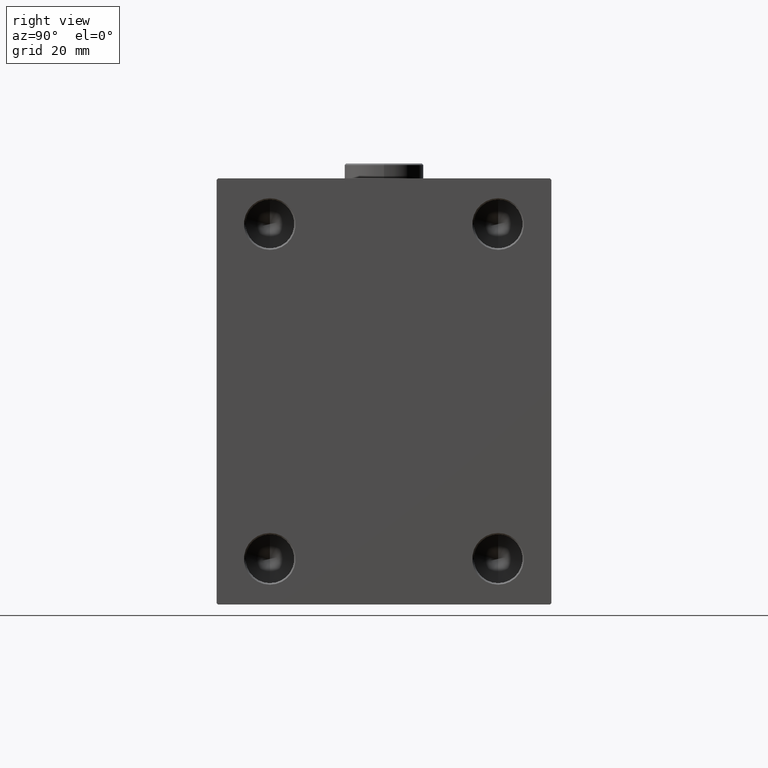
[diagram: clean part render]
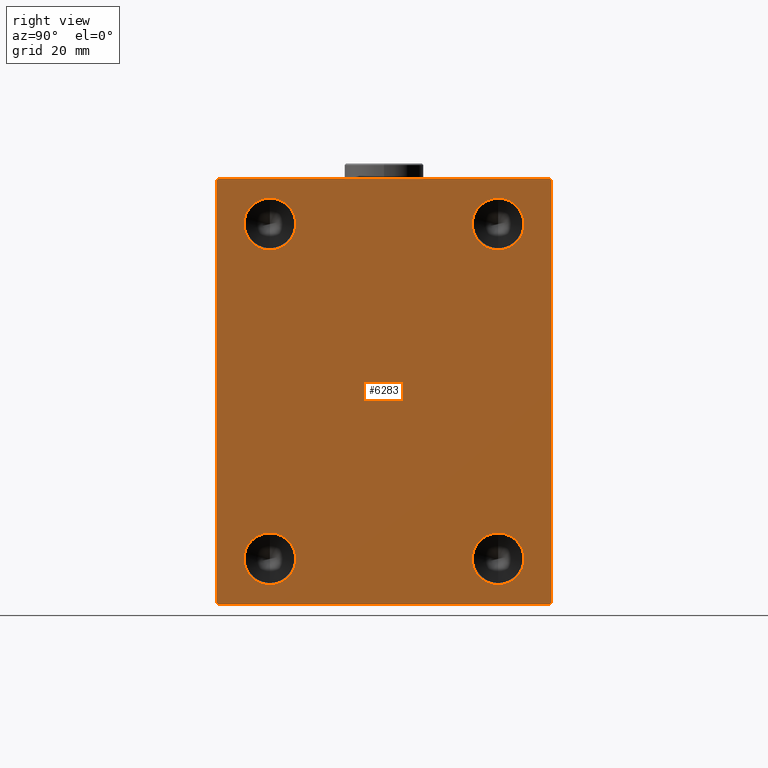
[diagram: same view with one face highlighted and labeled with its STEP entity id]
A machine part, right view. The second image highlights one B-rep face of the part: STEP entity #6283.
In plain terms, the highlighted planar face has unit normal (1, 0, 0).
Its self-contained STEP definition (entity closure, byte-faithful):
#116 = EDGE_CURVE ( 'NONE', #36750, #21173, #35311, .T. ) ;
#149 = DIRECTION ( 'NONE',  ( 0.000000000000000000, -1.000000000000000000, -1.261617073437677999E-16 ) ) ;
#268 = VERTEX_POINT ( 'NONE', #36465 ) ;
#390 = CARTESIAN_POINT ( 'NONE',  ( 143.0000000000000000, 54.99999999999999289, 70.00000000000001421 ) ) ;
#1232 = VERTEX_POINT ( 'NONE', #20285 ) ;
#1524 = EDGE_CURVE ( 'NONE', #17525, #32131, #30371, .T. ) ;
#1645 = ORIENTED_EDGE ( 'NONE', *, *, #116, .T. ) ;
#2725 = CARTESIAN_POINT ( 'NONE',  ( 143.0000000000000000, -54.50000000000000000, -70.00000000000000000 ) ) ;
#3225 = DIRECTION ( 'NONE',  ( -0.000000000000000000, 0.7071067811865671127, -0.7071067811865279218 ) ) ;
#3595 = FACE_BOUND ( 'NONE', #18218, .T. ) ;
#3658 = VERTEX_POINT ( 'NONE', #44358 ) ;
#3803 = CARTESIAN_POINT ( 'NONE',  ( 143.0000000000000000, -37.49999999999999289, 55.00000000000000711 ) ) ;
#4726 = DIRECTION ( 'NONE',  ( 1.000000000000000000, -0.000000000000000000, -0.000000000000000000 ) ) ;
#4777 = EDGE_CURVE ( 'NONE', #44941, #268, #14602, .T. ) ;
#4869 = VERTEX_POINT ( 'NONE', #44630 ) ;
#5293 = VERTEX_POINT ( 'NONE', #7805 ) ;
#5442 = VECTOR ( 'NONE', #8842, 1000.000000000000000 ) ;
#6191 = ORIENTED_EDGE ( 'NONE', *, *, #32088, .F. ) ;
#6283 = ADVANCED_FACE ( 'NONE', ( #41273, #24171, #3595, #9870, #20258 ), #17233, .T. ) ;
#6476 = EDGE_CURVE ( 'NONE', #3658, #35433, #38409, .T. ) ;
#6695 = EDGE_CURVE ( 'NONE', #35433, #1232, #12090, .T. ) ;
#6751 = DIRECTION ( 'NONE',  ( 1.000000000000000000, -0.000000000000000000, -0.000000000000000000 ) ) ;
#6886 = CARTESIAN_POINT ( 'NONE',  ( 143.0000000000000000, 37.50000000000000000, -54.99999999999999289 ) ) ;
#7600 = CARTESIAN_POINT ( 'NONE',  ( 143.0000000000000000, -55.00000000000000000, -70.00000000000000000 ) ) ;
#7805 = CARTESIAN_POINT ( 'NONE',  ( 143.0000000000000000, 37.50000000000000000, -46.49999999999997158 ) ) ;
#8194 = EDGE_CURVE ( 'NONE', #32131, #17525, #44920, .T. ) ;
#8311 = CIRCLE ( 'NONE', #43722, 8.500000000000007105 ) ;
#8842 = DIRECTION ( 'NONE',  ( 0.000000000000000000, -0.7071067811865328068, -0.7071067811865622277 ) ) ;
#9870 = FACE_BOUND ( 'NONE', #25074, .T. ) ;
#10042 = CARTESIAN_POINT ( 'NONE',  ( 143.0000000000000000, 55.00000000000000711, -69.99999999999998579 ) ) ;
#10045 = CARTESIAN_POINT ( 'NONE',  ( 143.0000000000000000, 37.50000000000000000, 63.50000000000000000 ) ) ;
#11202 = CARTESIAN_POINT ( 'NONE',  ( 143.0000000000000000, -37.49999999999999289, 55.00000000000000711 ) ) ;
#12027 = ORIENTED_EDGE ( 'NONE', *, *, #6476, .T. ) ;
#12090 = LINE ( 'NONE', #29872, #21261 ) ;
#12583 = CARTESIAN_POINT ( 'NONE',  ( 143.0000000000000000, -37.49999999999999289, -63.49999999999998579 ) ) ;
#13634 = EDGE_CURVE ( 'NONE', #16220, #5293, #37642, .T. ) ;
#13839 = LINE ( 'NONE', #44827, #30581 ) ;
#13900 = VECTOR ( 'NONE', #39547, 1000.000000000000000 ) ;
#14602 = LINE ( 'NONE', #29388, #13900 ) ;
#15207 = DIRECTION ( 'NONE',  ( 1.000000000000000000, -0.000000000000000000, -0.000000000000000000 ) ) ;
#15557 = DIRECTION ( 'NONE',  ( -0.000000000000000000, 0.7071067811865230368, 0.7071067811865721087 ) ) ;
#16220 = VERTEX_POINT ( 'NONE', #23521 ) ;
#16331 = EDGE_CURVE ( 'NONE', #26751, #27912, #36220, .T. ) ;
#16358 = AXIS2_PLACEMENT_3D ( 'NONE', #3803, #31986, #20908 ) ;
#16569 = CIRCLE ( 'NONE', #22475, 8.500000000000007105 ) ;
#16913 = ORIENTED_EDGE ( 'NONE', *, *, #6695, .T. ) ;
#17112 = CARTESIAN_POINT ( 'NONE',  ( 143.0000000000000000, 54.50000000000004263, -69.99999999999998579 ) ) ;
#17233 = PLANE ( 'NONE',  #31638 ) ;
#17366 = CARTESIAN_POINT ( 'NONE',  ( 143.0000000000000000, 37.50000000000000000, -54.99999999999999289 ) ) ;
#17525 = VERTEX_POINT ( 'NONE', #28425 ) ;
#17683 = DIRECTION ( 'NONE',  ( 1.000000000000000000, 0.000000000000000000, 0.000000000000000000 ) ) ;
#17884 = CIRCLE ( 'NONE', #37084, 8.500000000000007105 ) ;
#17934 = LINE ( 'NONE', #390, #31239 ) ;
#18201 = CARTESIAN_POINT ( 'NONE',  ( 143.0000000000000000, -37.49999999999999289, -54.99999999999999289 ) ) ;
#18218 = EDGE_LOOP ( 'NONE', ( #22611, #29562 ) ) ;
#18339 = LINE ( 'NONE', #29422, #20170 ) ;
#19038 = ORIENTED_EDGE ( 'NONE', *, *, #1524, .F. ) ;
#19206 = DIRECTION ( 'NONE',  ( 1.000000000000000000, -0.000000000000000000, -0.000000000000000000 ) ) ;
#19310 = VERTEX_POINT ( 'NONE', #25193 ) ;
#19994 = VECTOR ( 'NONE', #28152, 1000.000000000000000 ) ;
#20170 = VECTOR ( 'NONE', #15557, 999.9999999999998863 ) ;
#20258 = FACE_OUTER_BOUND ( 'NONE', #23198, .T. ) ;
#20285 = CARTESIAN_POINT ( 'NONE',  ( 143.0000000000000000, 54.49999999999999289, 70.00000000000001421 ) ) ;
#20456 = EDGE_CURVE ( 'NONE', #27912, #26751, #8311, .T. ) ;
#20647 = DIRECTION ( 'NONE',  ( 0.000000000000000000, -9.912705577010325549E-17, 1.000000000000000000 ) ) ;
#20908 = DIRECTION ( 'NONE',  ( 0.000000000000000000, 0.000000000000000000, -1.000000000000000000 ) ) ;
#21173 = VERTEX_POINT ( 'NONE', #17112 ) ;
#21261 = VECTOR ( 'NONE', #44412, 1000.000000000000000 ) ;
#21416 = DIRECTION ( 'NONE',  ( 0.000000000000000000, 0.000000000000000000, -1.000000000000000000 ) ) ;
#21608 = DIRECTION ( 'NONE',  ( 1.000000000000000000, -0.000000000000000000, -0.000000000000000000 ) ) ;
#21818 = VERTEX_POINT ( 'NONE', #10045 ) ;
#21846 = CIRCLE ( 'NONE', #32161, 8.500000000000035527 ) ;
#21877 = EDGE_LOOP ( 'NONE', ( #40613, #25611 ) ) ;
#22138 = CARTESIAN_POINT ( 'NONE',  ( 143.0000000000000000, 37.50000000000000000, 55.00000000000000711 ) ) ;
#22218 = CARTESIAN_POINT ( 'NONE',  ( 143.0000000000000000, -62.25000000000114397, 62.24999999999855049 ) ) ;
#22475 = AXIS2_PLACEMENT_3D ( 'NONE', #22138, #15207, #42931 ) ;
#22611 = ORIENTED_EDGE ( 'NONE', *, *, #16331, .F. ) ;
#23198 = EDGE_LOOP ( 'NONE', ( #23742, #31028, #26746, #44215, #1645, #43278, #12027, #16913 ) ) ;
#23521 = CARTESIAN_POINT ( 'NONE',  ( 143.0000000000000000, 37.50000000000000000, -63.50000000000001421 ) ) ;
#23742 = ORIENTED_EDGE ( 'NONE', *, *, #36835, .T. ) ;
#24000 = EDGE_CURVE ( 'NONE', #19310, #21818, #17884, .T. ) ;
#24171 = FACE_BOUND ( 'NONE', #37984, .T. ) ;
#24434 = DIRECTION ( 'NONE',  ( 0.000000000000000000, 0.000000000000000000, -1.000000000000000000 ) ) ;
#25074 = EDGE_LOOP ( 'NONE', ( #6191, #26450 ) ) ;
#25193 = CARTESIAN_POINT ( 'NONE',  ( 143.0000000000000000, 37.50000000000000000, 46.50000000000001421 ) ) ;
#25611 = ORIENTED_EDGE ( 'NONE', *, *, #24000, .F. ) ;
#25837 = ORIENTED_EDGE ( 'NONE', *, *, #8194, .F. ) ;
#26450 = ORIENTED_EDGE ( 'NONE', *, *, #13634, .F. ) ;
#26746 = ORIENTED_EDGE ( 'NONE', *, *, #4777, .T. ) ;
#26751 = VERTEX_POINT ( 'NONE', #31535 ) ;
#27243 = VECTOR ( 'NONE', #20647, 1000.000000000000000 ) ;
#27912 = VERTEX_POINT ( 'NONE', #12583 ) ;
#28152 = DIRECTION ( 'NONE',  ( 0.000000000000000000, 1.000000000000000000, 1.261617073437677752E-16 ) ) ;
#28425 = CARTESIAN_POINT ( 'NONE',  ( 143.0000000000000000, -37.49999999999999289, 46.50000000000001421 ) ) ;
#29155 = LINE ( 'NONE', #22218, #5442 ) ;
#29214 = EDGE_CURVE ( 'NONE', #268, #36750, #13839, .T. ) ;
#29388 = CARTESIAN_POINT ( 'NONE',  ( 143.0000000000000000, -55.00000000000000000, 70.00000000000000000 ) ) ;
#29422 = CARTESIAN_POINT ( 'NONE',  ( 143.0000000000000000, 62.25000000000191136, -62.24999999999759126 ) ) ;
#29431 = CARTESIAN_POINT ( 'NONE',  ( 143.0000000000000000, -37.49999999999999289, -54.99999999999999289 ) ) ;
#29562 = ORIENTED_EDGE ( 'NONE', *, *, #20456, .F. ) ;
#29872 = CARTESIAN_POINT ( 'NONE',  ( 143.0000000000000000, 62.24999999999849365, 62.25000000000193978 ) ) ;
#30371 = CIRCLE ( 'NONE', #16358, 8.500000000000007105 ) ;
#30581 = VECTOR ( 'NONE', #3225, 1000.000000000000000 ) ;
#31028 = ORIENTED_EDGE ( 'NONE', *, *, #42095, .T. ) ;
#31239 = VECTOR ( 'NONE', #149, 1000.000000000000000 ) ;
#31464 = DIRECTION ( 'NONE',  ( 0.000000000000000000, 0.000000000000000000, -1.000000000000000000 ) ) ;
#31535 = CARTESIAN_POINT ( 'NONE',  ( 143.0000000000000000, -37.49999999999999289, -46.50000000000000000 ) ) ;
#31546 = CARTESIAN_POINT ( 'NONE',  ( 143.0000000000000000, 0.000000000000000000, 0.000000000000000000 ) ) ;
#31638 = AXIS2_PLACEMENT_3D ( 'NONE', #31546, #17683, #34560 ) ;
#31986 = DIRECTION ( 'NONE',  ( 1.000000000000000000, -0.000000000000000000, -0.000000000000000000 ) ) ;
#32088 = EDGE_CURVE ( 'NONE', #5293, #16220, #21846, .T. ) ;
#32131 = VERTEX_POINT ( 'NONE', #40233 ) ;
#32161 = AXIS2_PLACEMENT_3D ( 'NONE', #17366, #6751, #31464 ) ;
#33960 = CARTESIAN_POINT ( 'NONE',  ( 143.0000000000000000, 37.50000000000000000, 55.00000000000000711 ) ) ;
#34560 = DIRECTION ( 'NONE',  ( 0.000000000000000000, 0.000000000000000000, -1.000000000000000000 ) ) ;
#35311 = LINE ( 'NONE', #7600, #19994 ) ;
#35424 = AXIS2_PLACEMENT_3D ( 'NONE', #6886, #42217, #24434 ) ;
#35433 = VERTEX_POINT ( 'NONE', #37865 ) ;
#36023 = AXIS2_PLACEMENT_3D ( 'NONE', #11202, #21608, #39144 ) ;
#36220 = CIRCLE ( 'NONE', #38414, 8.500000000000007105 ) ;
#36465 = CARTESIAN_POINT ( 'NONE',  ( 143.0000000000000000, -55.00000000000000000, -69.50000000000002842 ) ) ;
#36750 = VERTEX_POINT ( 'NONE', #2725 ) ;
#36785 = CARTESIAN_POINT ( 'NONE',  ( 143.0000000000000000, -55.00000000000000000, 69.50000000000000000 ) ) ;
#36835 = EDGE_CURVE ( 'NONE', #1232, #4869, #17934, .T. ) ;
#37084 = AXIS2_PLACEMENT_3D ( 'NONE', #33960, #19206, #44833 ) ;
#37250 = EDGE_CURVE ( 'NONE', #21173, #3658, #18339, .T. ) ;
#37642 = CIRCLE ( 'NONE', #35424, 8.500000000000035527 ) ;
#37865 = CARTESIAN_POINT ( 'NONE',  ( 143.0000000000000000, 54.99999999999999289, 69.50000000000004263 ) ) ;
#37984 = EDGE_LOOP ( 'NONE', ( #25837, #19038 ) ) ;
#38409 = LINE ( 'NONE', #10042, #27243 ) ;
#38414 = AXIS2_PLACEMENT_3D ( 'NONE', #29431, #4726, #21416 ) ;
#39144 = DIRECTION ( 'NONE',  ( 0.000000000000000000, 0.000000000000000000, -1.000000000000000000 ) ) ;
#39547 = DIRECTION ( 'NONE',  ( 0.000000000000000000, 0.000000000000000000, -1.000000000000000000 ) ) ;
#39896 = DIRECTION ( 'NONE',  ( 0.000000000000000000, 0.000000000000000000, -1.000000000000000000 ) ) ;
#40233 = CARTESIAN_POINT ( 'NONE',  ( 143.0000000000000000, -37.49999999999999289, 63.50000000000000000 ) ) ;
#40613 = ORIENTED_EDGE ( 'NONE', *, *, #45300, .F. ) ;
#41273 = FACE_BOUND ( 'NONE', #21877, .T. ) ;
#42095 = EDGE_CURVE ( 'NONE', #4869, #44941, #29155, .T. ) ;
#42217 = DIRECTION ( 'NONE',  ( 1.000000000000000000, -0.000000000000000000, -0.000000000000000000 ) ) ;
#42931 = DIRECTION ( 'NONE',  ( 0.000000000000000000, 0.000000000000000000, -1.000000000000000000 ) ) ;
#43278 = ORIENTED_EDGE ( 'NONE', *, *, #37250, .T. ) ;
#43722 = AXIS2_PLACEMENT_3D ( 'NONE', #18201, #43847, #39896 ) ;
#43847 = DIRECTION ( 'NONE',  ( 1.000000000000000000, -0.000000000000000000, -0.000000000000000000 ) ) ;
#44215 = ORIENTED_EDGE ( 'NONE', *, *, #29214, .T. ) ;
#44358 = CARTESIAN_POINT ( 'NONE',  ( 143.0000000000000000, 55.00000000000000711, -69.49999999999998579 ) ) ;
#44412 = DIRECTION ( 'NONE',  ( -0.000000000000000000, -0.7071067811865671127, 0.7071067811865279218 ) ) ;
#44630 = CARTESIAN_POINT ( 'NONE',  ( 143.0000000000000000, -54.50000000000002132, 70.00000000000000000 ) ) ;
#44827 = CARTESIAN_POINT ( 'NONE',  ( 143.0000000000000000, -62.24999999999849365, -62.25000000000193978 ) ) ;
#44833 = DIRECTION ( 'NONE',  ( 0.000000000000000000, 0.000000000000000000, -1.000000000000000000 ) ) ;
#44920 = CIRCLE ( 'NONE', #36023, 8.500000000000007105 ) ;
#44941 = VERTEX_POINT ( 'NONE', #36785 ) ;
#45300 = EDGE_CURVE ( 'NONE', #21818, #19310, #16569, .T. ) ;